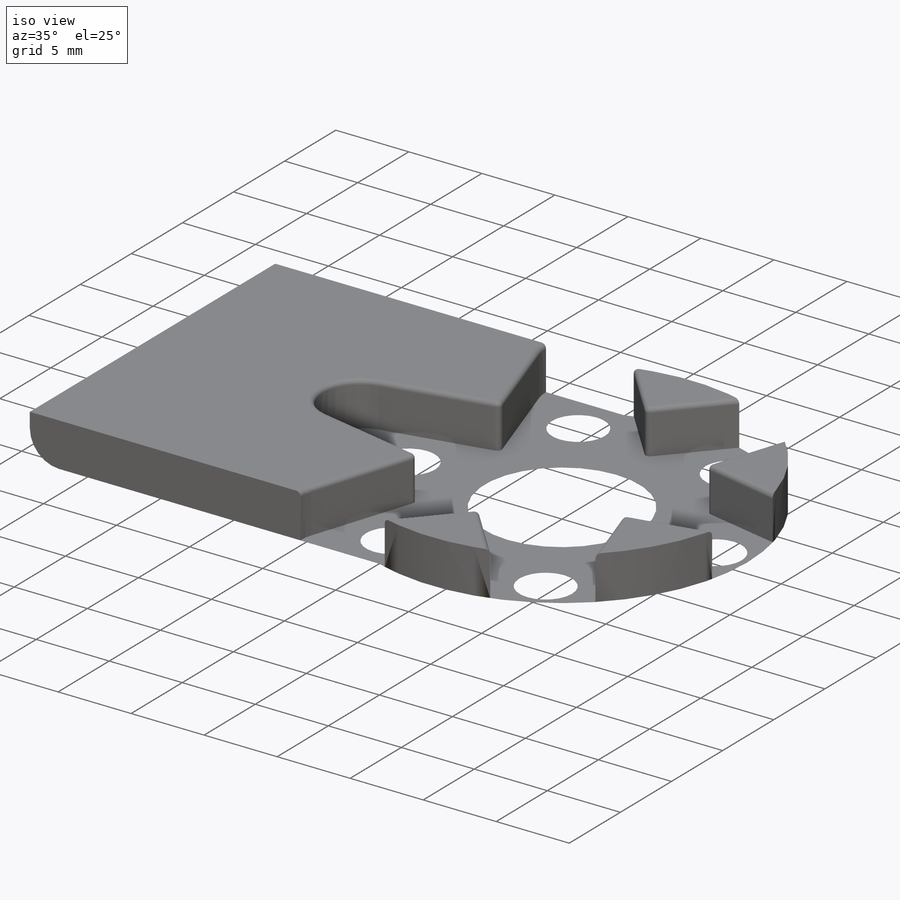
[diagram: iso view]
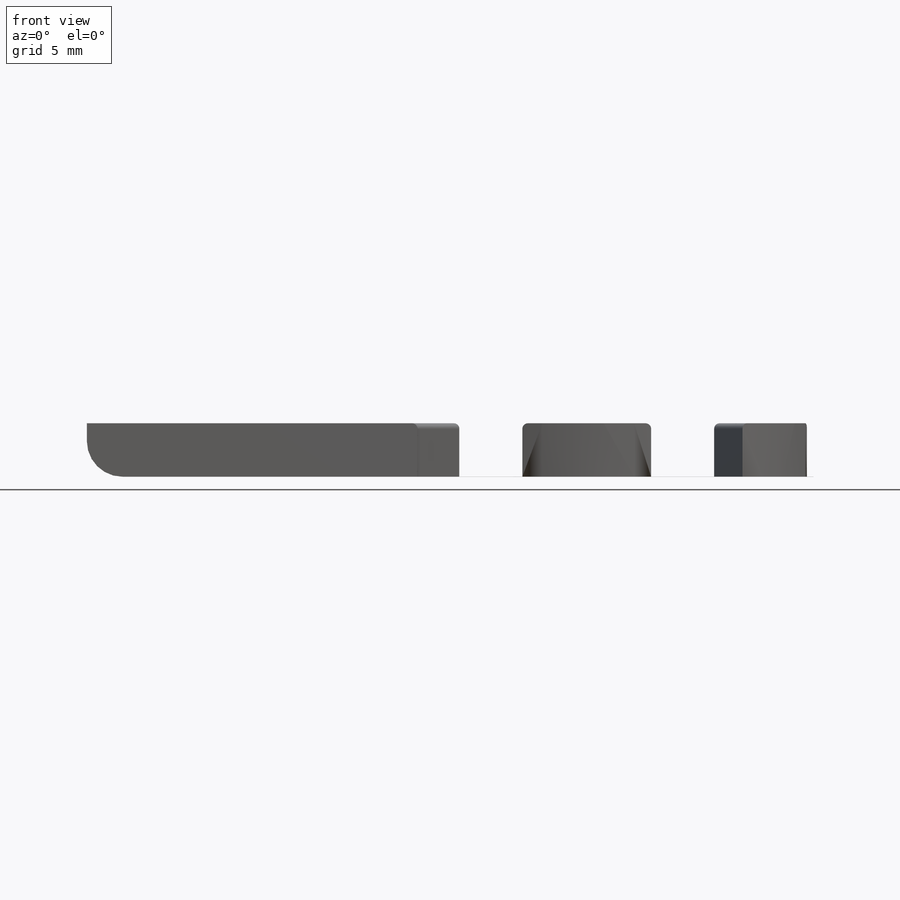
[diagram: front view]
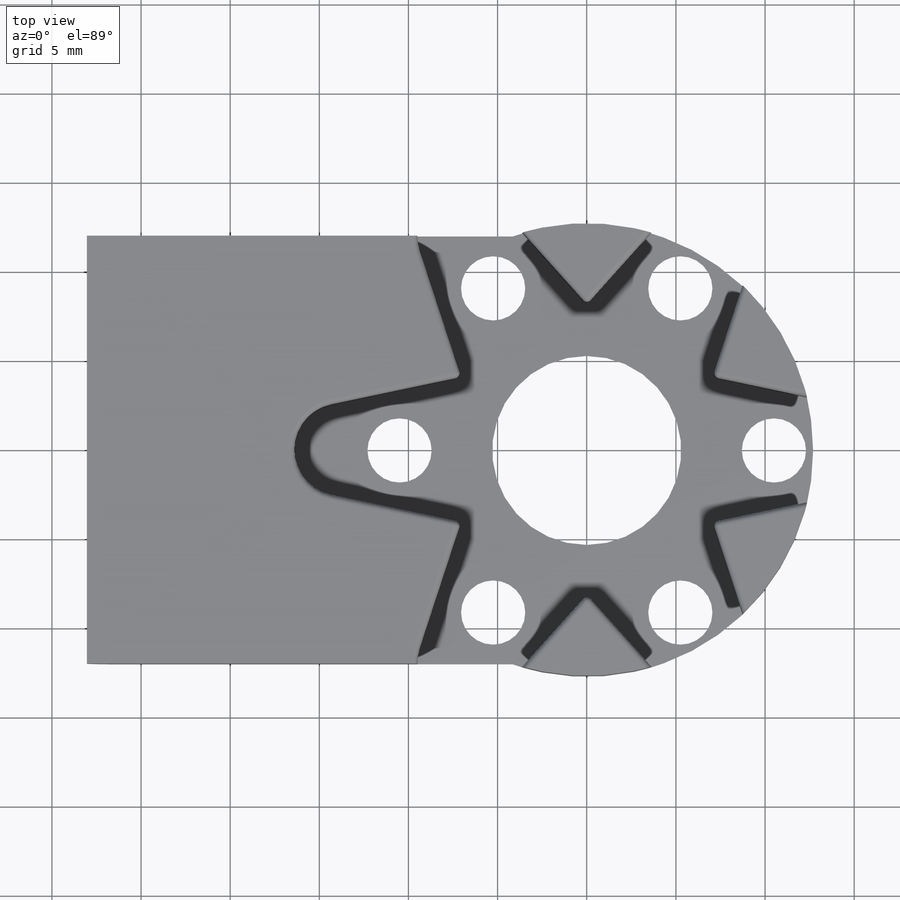
[diagram: top view]
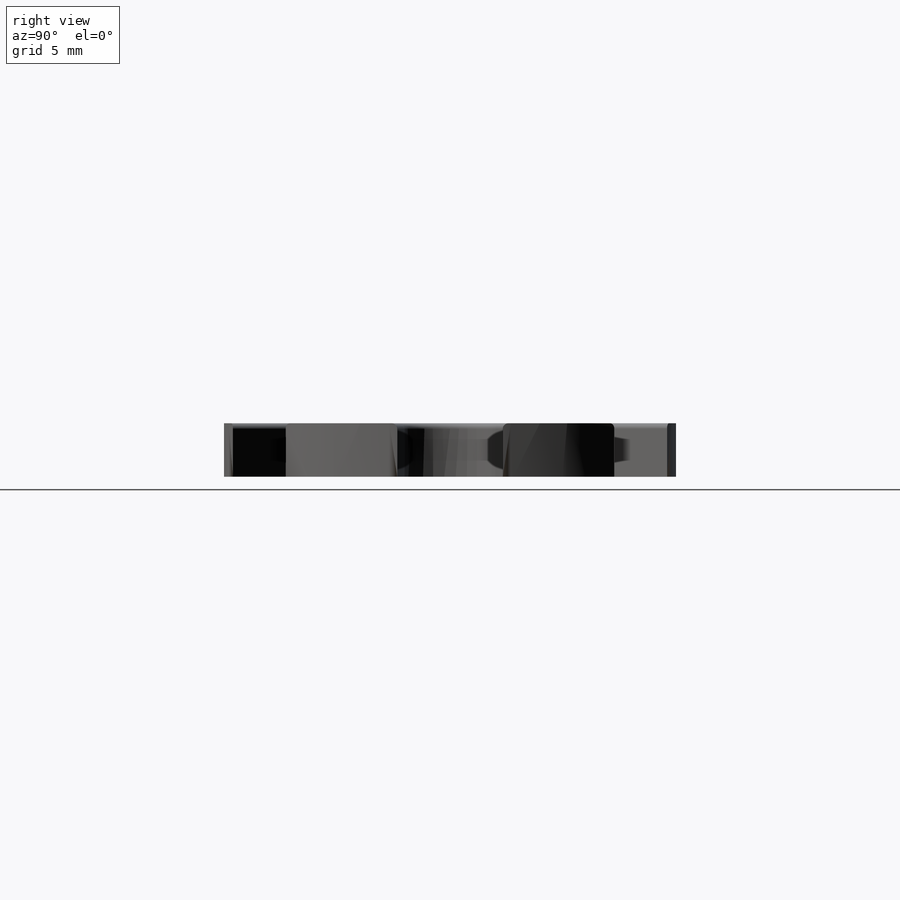
[diagram: right view]
SOLIDWORKS PART (.sldprt)
format: sldprt  version: not decoded by parser v0  size: 313,856 bytes
history: native  units: mm
features: plane x3, sketch x3, cut_extrude x2, fillet x2, material x1, extrude x1, pattern_circular x1 (+8 scaffold rows collapsed)
feature tree (21):
  scaffold x8  (default folders/planes/origin — collapsed)
  material  "Material <sin especificar>"
  plane  "Alzado"
  plane  "Planta"
  plane  "Vista lateral"
  sketch  "Croquis1"  dims[D1=25.4mm D3=10.6mm D2=24.0mm D4=28.04mm]
  extrude  "Saliente-Extruir1"  Depth=3mm
  sketch  "Croquis2"  dims[D1=16.3mm D2=5.2mm D4=32.8mm D5=8.0mm D3=6.0]
  cut_extrude  "Cortar-Extruir2"  Depth=0.01mm
  fillet  "Redondeo1"  Radius=2mm
  fillet  "Redondeo2"  Radius=0.3mm
  sketch  "Croquis3"  dims[D1=21.0mm D2=3.6mm]
  cut_extrude  "Cortar-Extruir3"  Depth=10mm
  pattern_circular  "MatrizC1"  Count=6 Angle=360deg
decode coverage: 9 of 9 modeling features carry decoded parameters
note: suppression state not decoded; provenance and decode notes live in map.json
